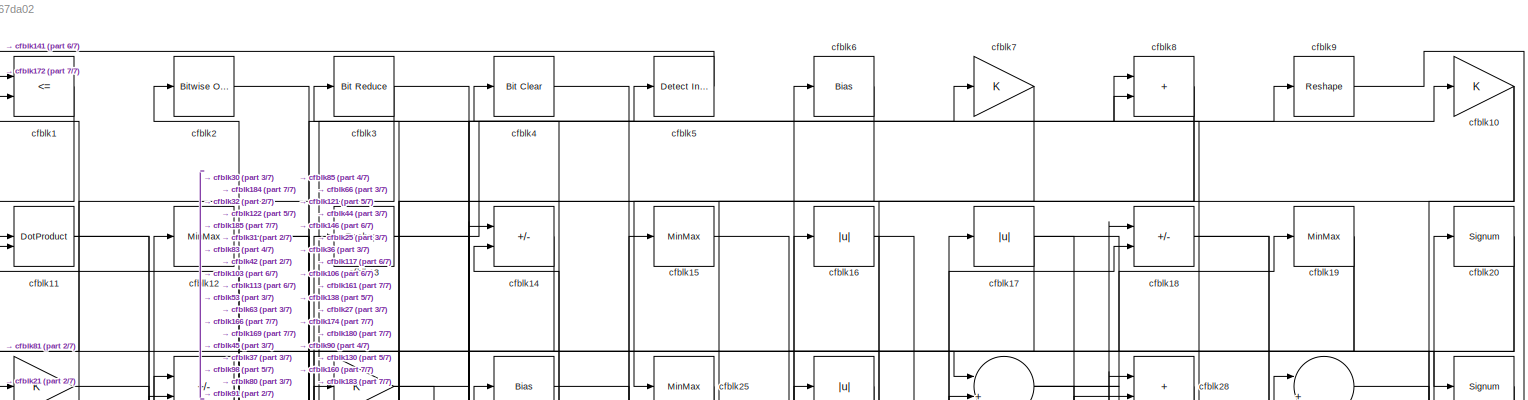
[diagram: root canvas - part 1/7, full width, top band]
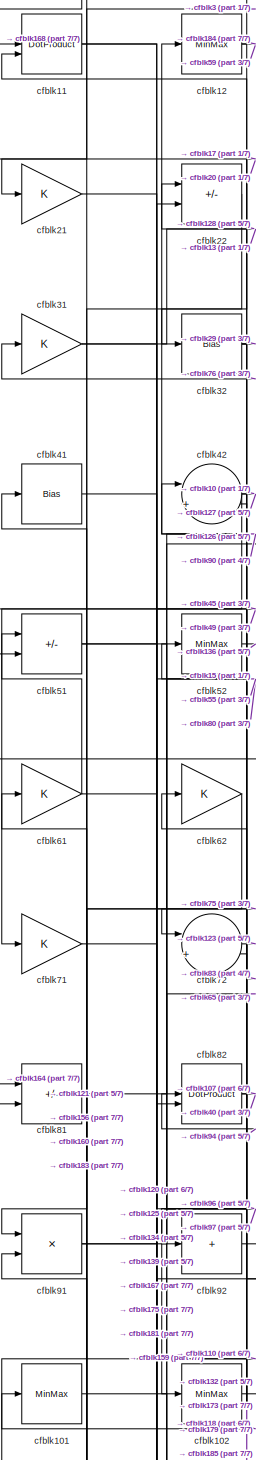
[diagram: root canvas - part 2/7, top left region]
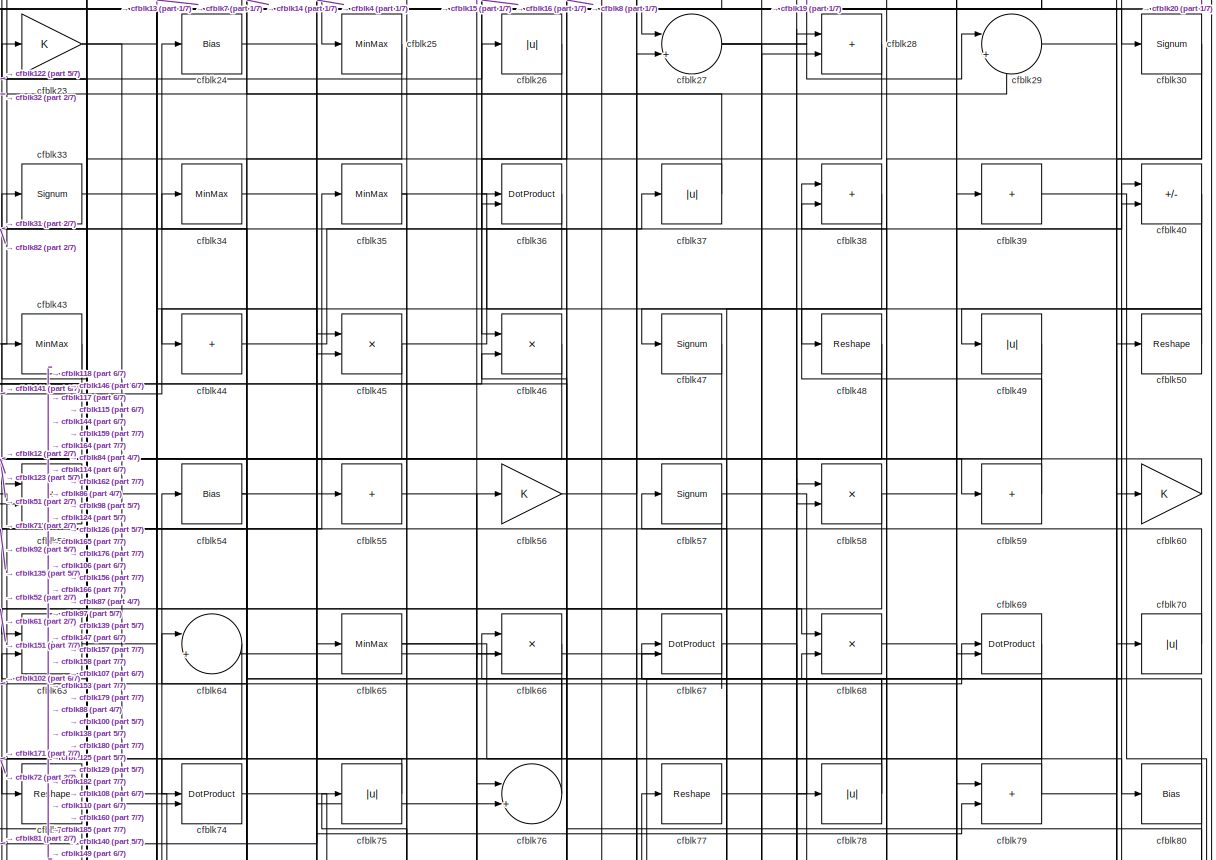
[diagram: root canvas - part 3/7, full width, top band]
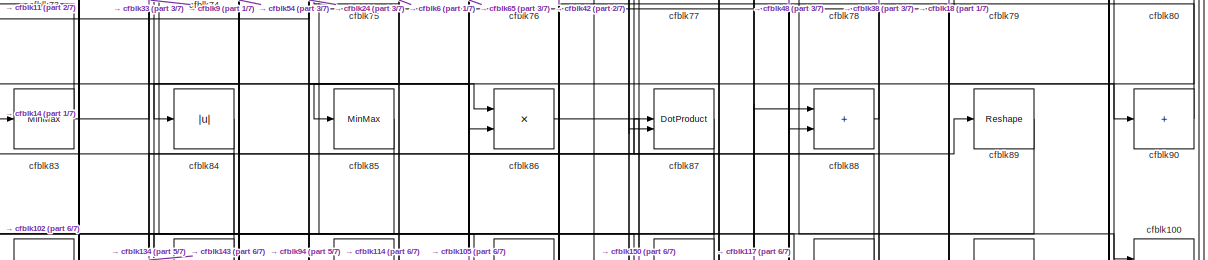
[diagram: root canvas - part 4/7, full width, middle band]
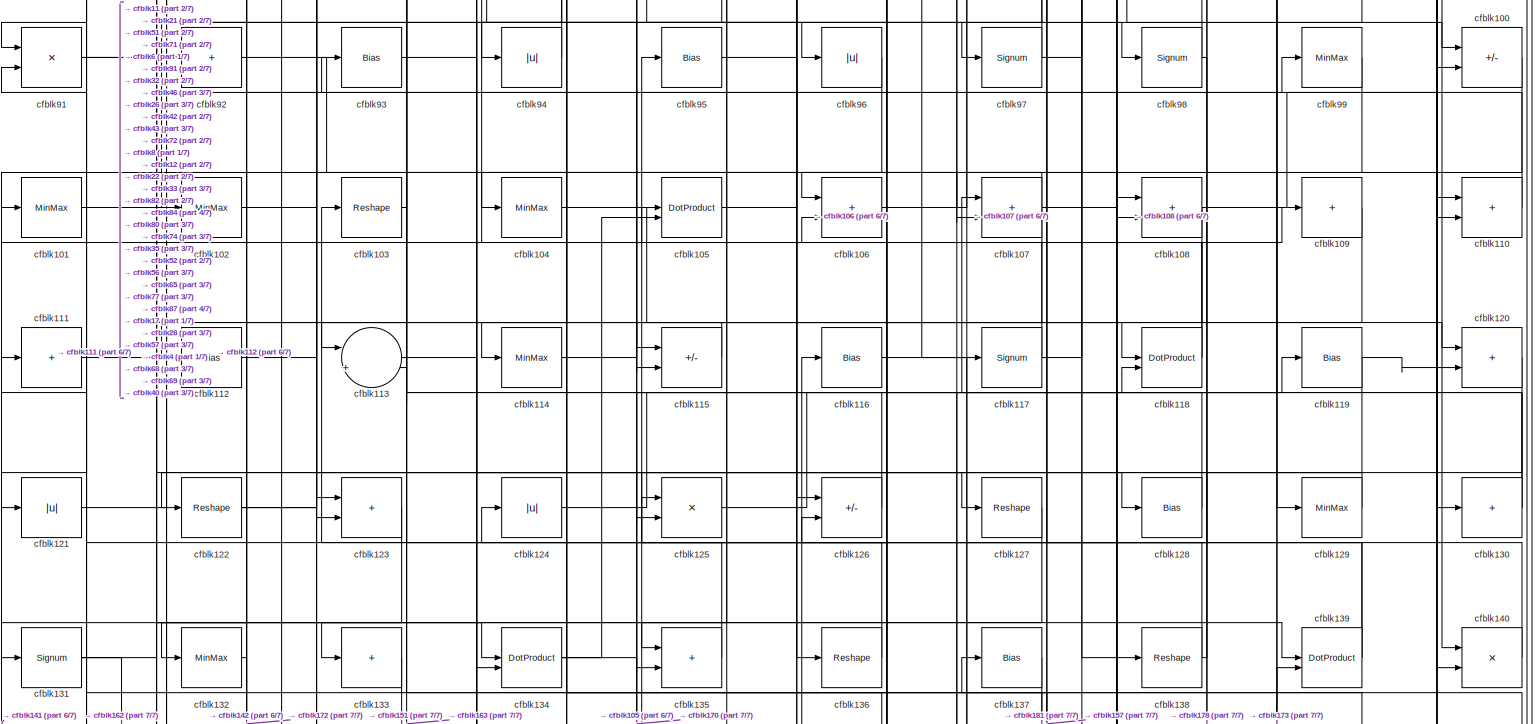
[diagram: root canvas - part 5/7, full width, middle band]
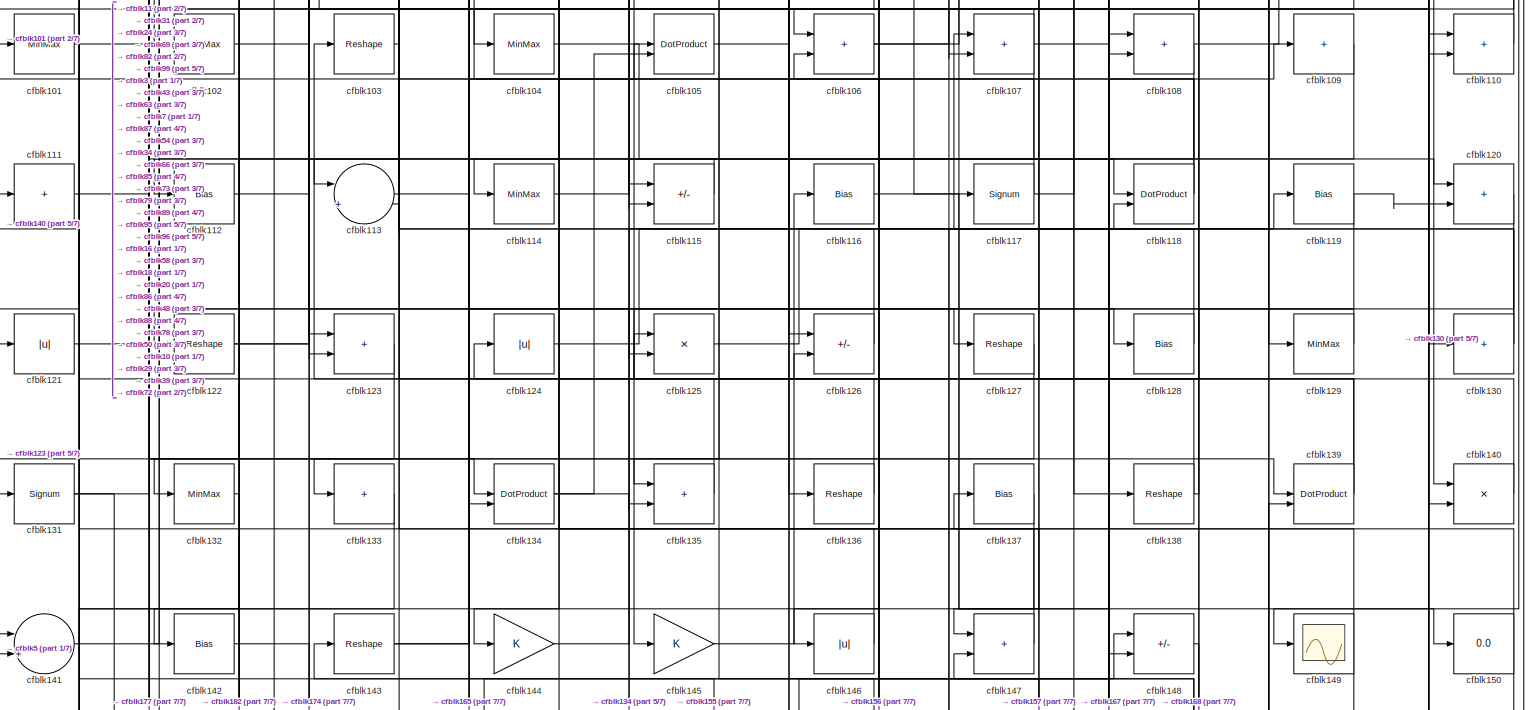
[diagram: root canvas - part 6/7, full width, middle band]
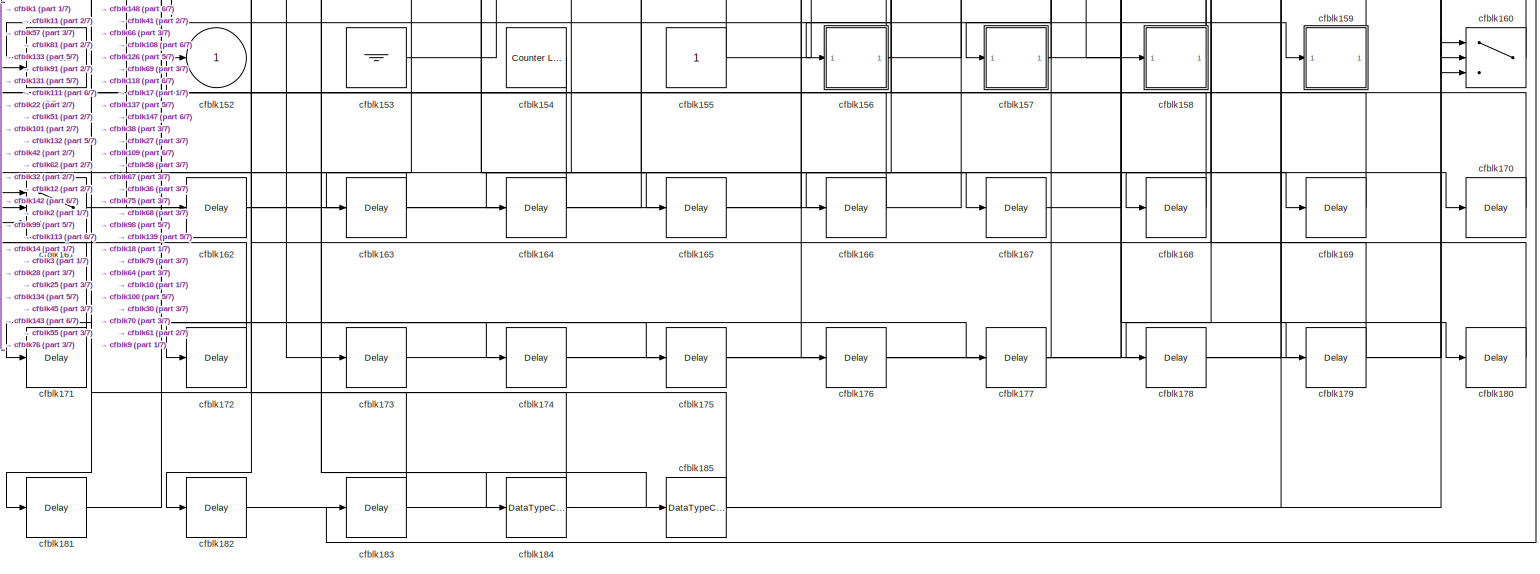
[diagram: root canvas - part 7/7, full width, bottom band]
MODEL slx_f5127b67da02
KIND model
CONFIG AbsTol = auto
CONFIG EnableMultiTasking = off
CONFIG FixedStep = auto
CONFIG MaxStep = auto
CONFIG MinStep = auto
CONFIG RelTol = 1e-3
CONFIG SampleTimeConstraint = Unconstrained
CONFIG SolverName = VariableStepAuto
CONFIG StartTime = 0.0
CONFIG StopTime = 10.0
BLOCK [RelationalOperator] cfblk1
  InputSameDT = off
  Operator = <=
  OutDataTypeStr = boolean
BLOCK [Gain] cfblk10
BLOCK [Sum] cfblk100
  IconShape = rectangular
  Inputs = +-
BLOCK [MinMax] cfblk101
BLOCK [MinMax] cfblk102
BLOCK [Reshape] cfblk103
BLOCK [MinMax] cfblk104
BLOCK [DotProduct] cfblk105
  OutDataTypeStr = Inherit: Inherit via internal rule
BLOCK [Sum] cfblk106
  IconShape = rectangular
BLOCK [Sum] cfblk107
  IconShape = rectangular
BLOCK [Sum] cfblk108
  IconShape = rectangular
BLOCK [Sum] cfblk109
  IconShape = rectangular
  Inputs = +
BLOCK [DotProduct] cfblk11
  OutDataTypeStr = Inherit: Inherit via internal rule
BLOCK [Sum] cfblk110
  IconShape = rectangular
BLOCK [Sum] cfblk111
  IconShape = rectangular
  Inputs = +
BLOCK [Bias] cfblk112
  Bias = 0.0
  SaturateOnIntegerOverflow = off
BLOCK [Sum] cfblk113
  Inputs = |++
BLOCK [MinMax] cfblk114
BLOCK [Sum] cfblk115
  IconShape = rectangular
  Inputs = +-
BLOCK [Bias] cfblk116
  Bias = 0.0
  SaturateOnIntegerOverflow = off
BLOCK [Signum] cfblk117
BLOCK [DotProduct] cfblk118
  OutDataTypeStr = Inherit: Inherit via internal rule
BLOCK [Bias] cfblk119
  Bias = 0.0
  SaturateOnIntegerOverflow = off
BLOCK [MinMax] cfblk12
BLOCK [Sum] cfblk120
  IconShape = rectangular
BLOCK [Abs] cfblk121
  SaturateOnIntegerOverflow = off
BLOCK [Reshape] cfblk122
BLOCK [Sum] cfblk123
  IconShape = rectangular
BLOCK [Abs] cfblk124
  SaturateOnIntegerOverflow = off
BLOCK [Product] cfblk125
  Inputs = */
  RndMeth = Zero
  SaturateOnIntegerOverflow = on
BLOCK [Sum] cfblk126
  IconShape = rectangular
  Inputs = +-
BLOCK [Reshape] cfblk127
BLOCK [Bias] cfblk128
  Bias = 0.0
  SaturateOnIntegerOverflow = off
BLOCK [MinMax] cfblk129
BLOCK [Reshape] cfblk13
BLOCK [Sum] cfblk130
  IconShape = rectangular
  Inputs = +
BLOCK [Signum] cfblk131
BLOCK [MinMax] cfblk132
BLOCK [Sum] cfblk133
  IconShape = rectangular
  Inputs = +
BLOCK [DotProduct] cfblk134
  OutDataTypeStr = Inherit: Inherit via internal rule
BLOCK [Sum] cfblk135
  IconShape = rectangular
BLOCK [Reshape] cfblk136
BLOCK [Bias] cfblk137
  Bias = 0.0
  SaturateOnIntegerOverflow = off
BLOCK [Reshape] cfblk138
BLOCK [DotProduct] cfblk139
  OutDataTypeStr = Inherit: Inherit via internal rule
BLOCK [Sum] cfblk14
  IconShape = rectangular
  Inputs = +-
BLOCK [Product] cfblk140
  Inputs = */
  RndMeth = Zero
  SaturateOnIntegerOverflow = on
BLOCK [Sum] cfblk141
  Inputs = |++
BLOCK [Bias] cfblk142
  Bias = 0.0
  SaturateOnIntegerOverflow = off
BLOCK [Reshape] cfblk143
BLOCK [Gain] cfblk144
BLOCK [Gain] cfblk145
BLOCK [Abs] cfblk146
  SaturateOnIntegerOverflow = off
BLOCK [Sum] cfblk147
  IconShape = rectangular
BLOCK [Sum] cfblk148
  IconShape = rectangular
  Inputs = +-
BLOCK [Scope] cfblk149
  Floating = off
  NumInputPorts = 1
  ScopeSpecificationString = Simulink.scopes.TimeScopeBlockCfg('CurrentConfiguration', extmgr.ConfigurationSet(extmgr.Configuration('Core','General UI',true),extmgr.Configuration('Core','Source UI',true),extmgr.Configuration('Sources','WiredSimulink',true,'DataLoggingVariableName','ScopeData2','DataLoggingSaveFormat','Array','DataLoggingLimitDataPoints',true,'DataLoggingDecimation','1'),extmgr.Configuration('Visuals','Time Do...<+868ch>
BLOCK [MinMax] cfblk15
BLOCK [Display] cfblk150
  Decimation = 1
BLOCK [Record] cfblk151
  CompatibilityTag = XY
  FileSettingsInternal = {"entries":[{"content":{"excelSettings":{"content":{},"type":"Streamout.ExcelSettings"}},"type":"Streamout.FileSettingStorage","uuid":""}],"packageUris":["http:\/\/schema.mathworks.com\/mf0\/streamout_blocks\/R2020a"],"version":"1.0"}
  Layout = [1 1]
  SignalsInternal = {"entries":[{"content":{"signals":[{"content":{"blockPath":[],"dimensions":[1],"domain":"","lineColor":"#a2142f","plots":[1],"port":1,"signalID":1220,"signalName":"XY Graph:1"},"type":"RecordBlkView.Signal","uuid":""},{"content":{"blockPath":[],"dimensions":[1],"domain":"","lineColor":"#139fff","plots":[1],"port":2,"signalID":1223,"signalName":"XY Graph:2"},"type":"RecordBlkView.Signal","uuid":""}...<+146ch>
  VisualizationBindings = {"xyplotplugin":{"info":[{"series":[{"bindingParametersList":[{"parameter":"X-Axis","signalID":1220,"signalName":"XY Graph:1"},{"parameter":"Y-Axis","signalID":1223,"signalName":"XY Graph:2"}],"seriesID":24875}],"subplotID":1}]}}
  st = -1
BLOCK [Outport] cfblk152
  VectorParamsAs1DForOutWhenUnconnected = off
BLOCK [Ground] cfblk153
BLOCK [Reference] cfblk154  REF=hdlsllib/Sources/Counter
Limited
  SourceBlock = hdlsllib/Sources/Counter\nLimited
  SourceType = Counter Limited
BLOCK [Constant] cfblk155
  SampleTime = -1
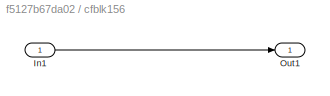
BLOCK [SubSystem] cfblk156
  LibrarySourceBlock = hdlsllib/Ports &\nSubsystems/Subsystem
BLOCK [Inport] cfblk156/In1
BLOCK [Outport] cfblk156/Out1
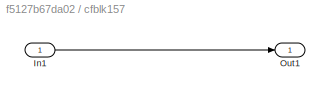
BLOCK [SubSystem] cfblk157
  LibrarySourceBlock = hdlsllib/Ports &\nSubsystems/Subsystem
BLOCK [Inport] cfblk157/In1
BLOCK [Outport] cfblk157/Out1
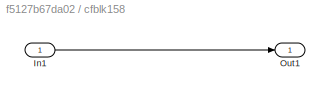
BLOCK [SubSystem] cfblk158
  LibrarySourceBlock = hdlsllib/Ports &\nSubsystems/Subsystem
BLOCK [Inport] cfblk158/In1
BLOCK [Outport] cfblk158/Out1
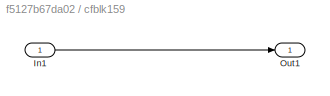
BLOCK [SubSystem] cfblk159
  LibrarySourceBlock = hdlsllib/Ports &\nSubsystems/Subsystem
BLOCK [Inport] cfblk159/In1
BLOCK [Outport] cfblk159/Out1
BLOCK [Abs] cfblk16
  SaturateOnIntegerOverflow = off
BLOCK [Switch] cfblk160
  InputSameDT = off
  SaturateOnIntegerOverflow = off
BLOCK [Switch] cfblk161
  InputSameDT = off
  SaturateOnIntegerOverflow = off
BLOCK [Delay] cfblk162
  InputPortMap = u0
  SampleTime = 1
BLOCK [Delay] cfblk163
  InputPortMap = u0
  SampleTime = 1
BLOCK [Delay] cfblk164
  InputPortMap = u0
  SampleTime = 1
BLOCK [Delay] cfblk165
  InputPortMap = u0
  SampleTime = 1
BLOCK [Delay] cfblk166
  InputPortMap = u0
  SampleTime = 1
BLOCK [Delay] cfblk167
  InputPortMap = u0
  SampleTime = 1
BLOCK [Delay] cfblk168
  InputPortMap = u0
  SampleTime = 1
BLOCK [Delay] cfblk169
  InputPortMap = u0
  SampleTime = 1
BLOCK [Abs] cfblk17
  SaturateOnIntegerOverflow = off
BLOCK [Delay] cfblk170
  InputPortMap = u0
  SampleTime = 1
BLOCK [Delay] cfblk171
  InputPortMap = u0
  SampleTime = 1
BLOCK [Delay] cfblk172
  InputPortMap = u0
  SampleTime = 1
BLOCK [Delay] cfblk173
  InputPortMap = u0
  SampleTime = 1
BLOCK [Delay] cfblk174
  InputPortMap = u0
  SampleTime = 1
BLOCK [Delay] cfblk175
  InputPortMap = u0
  SampleTime = 1
BLOCK [Delay] cfblk176
  InputPortMap = u0
  SampleTime = 1
BLOCK [Delay] cfblk177
  InputPortMap = u0
  SampleTime = 1
BLOCK [Delay] cfblk178
  InputPortMap = u0
  SampleTime = 1
BLOCK [Delay] cfblk179
  InputPortMap = u0
  SampleTime = 1
BLOCK [Sum] cfblk18
  IconShape = rectangular
  Inputs = +-
BLOCK [Delay] cfblk180
  InputPortMap = u0
  SampleTime = 1
BLOCK [Delay] cfblk181
  InputPortMap = u0
  SampleTime = 1
BLOCK [Delay] cfblk182
  InputPortMap = u0
  SampleTime = 1
BLOCK [Delay] cfblk183
  InputPortMap = u0
  SampleTime = 1
BLOCK [DataTypeConversion] cfblk184
  OutDataTypeStr = boolean
  RndMeth = Floor
  SaturateOnIntegerOverflow = off
BLOCK [DataTypeConversion] cfblk185
  RndMeth = Floor
  SaturateOnIntegerOverflow = off
BLOCK [MinMax] cfblk19
BLOCK [Reference] cfblk2  REF=simulink/Logic and Bit
Operations/Bitwise
Operator
  LibrarySourceBlock = hdlsllib/Logic and Bit\nOperations/Bitwise\nOperator
  SourceBlock = simulink/Logic and Bit\nOperations/Bitwise\nOperator
  SourceType = Bitwise Operator
BLOCK [Signum] cfblk20
BLOCK [Gain] cfblk21
BLOCK [Sum] cfblk22
  IconShape = rectangular
  Inputs = +-
BLOCK [Gain] cfblk23
BLOCK [Bias] cfblk24
  Bias = 0.0
  SaturateOnIntegerOverflow = off
BLOCK [MinMax] cfblk25
BLOCK [Abs] cfblk26
  SaturateOnIntegerOverflow = off
BLOCK [Sum] cfblk27
  Inputs = |++
BLOCK [Sum] cfblk28
  IconShape = rectangular
BLOCK [Sum] cfblk29
  Inputs = |++
BLOCK [Reference] cfblk3  REF=hdlsllib/Logic and Bit
Operations/Bit Reduce
  SourceBlock = hdlsllib/Logic and Bit\nOperations/Bit Reduce
  SourceType = Bit Reduce
BLOCK [Signum] cfblk30
BLOCK [Gain] cfblk31
BLOCK [Bias] cfblk32
  Bias = 0.0
  SaturateOnIntegerOverflow = off
BLOCK [Signum] cfblk33
BLOCK [MinMax] cfblk34
BLOCK [MinMax] cfblk35
BLOCK [DotProduct] cfblk36
  OutDataTypeStr = Inherit: Inherit via internal rule
BLOCK [Abs] cfblk37
  SaturateOnIntegerOverflow = off
BLOCK [Sum] cfblk38
  IconShape = rectangular
BLOCK [Sum] cfblk39
  IconShape = rectangular
  Inputs = +
BLOCK [Reference] cfblk4  REF=simulink/Logic and Bit
Operations/Bit Clear
  LibrarySourceBlock = hdlsllib/Logic and Bit\nOperations/Bit Clear
  SourceBlock = simulink/Logic and Bit\nOperations/Bit Clear
  SourceType = Bit Clear
BLOCK [Sum] cfblk40
  IconShape = rectangular
  Inputs = +-
BLOCK [Bias] cfblk41
  Bias = 0.0
  SaturateOnIntegerOverflow = off
BLOCK [Sum] cfblk42
  Inputs = |++
BLOCK [MinMax] cfblk43
BLOCK [Sum] cfblk44
  IconShape = rectangular
  Inputs = +
BLOCK [Product] cfblk45
  Inputs = */
  RndMeth = Zero
  SaturateOnIntegerOverflow = on
BLOCK [Product] cfblk46
  Inputs = */
  RndMeth = Zero
  SaturateOnIntegerOverflow = on
BLOCK [Signum] cfblk47
BLOCK [Reshape] cfblk48
BLOCK [Abs] cfblk49
  SaturateOnIntegerOverflow = off
BLOCK [Reference] cfblk5  REF=simulink/Logic and Bit
Operations/Detect
Increase
  LibrarySourceBlock = hdlsllib/Logic and Bit\nOperations/Detect\nIncrease
  SourceBlock = simulink/Logic and Bit\nOperations/Detect\nIncrease
  SourceType = Detect Increase
BLOCK [Reshape] cfblk50
BLOCK [Sum] cfblk51
  IconShape = rectangular
  Inputs = +-
BLOCK [MinMax] cfblk52
BLOCK [Sum] cfblk53
  IconShape = rectangular
BLOCK [Bias] cfblk54
  Bias = 0.0
  SaturateOnIntegerOverflow = off
BLOCK [Sum] cfblk55
  IconShape = rectangular
  Inputs = +
BLOCK [Gain] cfblk56
BLOCK [Signum] cfblk57
BLOCK [Product] cfblk58
  Inputs = */
  RndMeth = Zero
  SaturateOnIntegerOverflow = on
BLOCK [Sum] cfblk59
  IconShape = rectangular
  Inputs = +
BLOCK [Bias] cfblk6
  Bias = 0.0
  SaturateOnIntegerOverflow = off
BLOCK [Gain] cfblk60
BLOCK [Gain] cfblk61
BLOCK [Gain] cfblk62
BLOCK [Sum] cfblk63
  IconShape = rectangular
BLOCK [Sum] cfblk64
  Inputs = |++
BLOCK [MinMax] cfblk65
BLOCK [Product] cfblk66
  Inputs = */
  RndMeth = Zero
  SaturateOnIntegerOverflow = on
BLOCK [DotProduct] cfblk67
  OutDataTypeStr = Inherit: Inherit via internal rule
BLOCK [Product] cfblk68
  Inputs = */
  RndMeth = Zero
  SaturateOnIntegerOverflow = on
BLOCK [DotProduct] cfblk69
  OutDataTypeStr = Inherit: Inherit via internal rule
BLOCK [Gain] cfblk7
BLOCK [Abs] cfblk70
  SaturateOnIntegerOverflow = off
BLOCK [Gain] cfblk71
BLOCK [Sum] cfblk72
  Inputs = |++
BLOCK [Reshape] cfblk73
BLOCK [DotProduct] cfblk74
  OutDataTypeStr = Inherit: Inherit via internal rule
BLOCK [Abs] cfblk75
  SaturateOnIntegerOverflow = off
BLOCK [Sum] cfblk76
  Inputs = |++
BLOCK [Reshape] cfblk77
BLOCK [Abs] cfblk78
  SaturateOnIntegerOverflow = off
BLOCK [Sum] cfblk79
  IconShape = rectangular
BLOCK [Sum] cfblk8
  IconShape = rectangular
BLOCK [Bias] cfblk80
  Bias = 0.0
  SaturateOnIntegerOverflow = off
BLOCK [Sum] cfblk81
  IconShape = rectangular
  Inputs = +-
BLOCK [DotProduct] cfblk82
  OutDataTypeStr = Inherit: Inherit via internal rule
BLOCK [MinMax] cfblk83
BLOCK [Abs] cfblk84
  SaturateOnIntegerOverflow = off
BLOCK [MinMax] cfblk85
BLOCK [Product] cfblk86
  Inputs = */
  RndMeth = Zero
  SaturateOnIntegerOverflow = on
BLOCK [DotProduct] cfblk87
  OutDataTypeStr = Inherit: Inherit via internal rule
BLOCK [Sum] cfblk88
  IconShape = rectangular
BLOCK [Reshape] cfblk89
BLOCK [Reshape] cfblk9
BLOCK [Sum] cfblk90
  IconShape = rectangular
  Inputs = +
BLOCK [Product] cfblk91
  Inputs = */
  RndMeth = Zero
  SaturateOnIntegerOverflow = on
BLOCK [Sum] cfblk92
  IconShape = rectangular
  Inputs = +
BLOCK [Bias] cfblk93
  Bias = 0.0
  SaturateOnIntegerOverflow = off
BLOCK [Abs] cfblk94
  SaturateOnIntegerOverflow = off
BLOCK [Bias] cfblk95
  Bias = 0.0
  SaturateOnIntegerOverflow = off
BLOCK [Abs] cfblk96
  SaturateOnIntegerOverflow = off
BLOCK [Signum] cfblk97
BLOCK [Signum] cfblk98
BLOCK [MinMax] cfblk99
LINE cfblk100:1 -> cfblk131:1
LINE cfblk101:1 -> cfblk159:1
LINE cfblk102:1 -> cfblk69:1
LINE cfblk103:1 -> cfblk3:1
LINE cfblk104:1 -> cfblk118:1
LINE cfblk105:1 -> cfblk89:1
NET cfblk106:1 -> cfblk18:2, cfblk20:1
NET cfblk107:1 -> cfblk104:1, cfblk115:2, cfblk78:1
NET cfblk108:1 -> cfblk156:1, cfblk50:1
LINE cfblk109:1 -> cfblk182:1
NET cfblk10:1 -> cfblk113:1, cfblk160:3
LINE cfblk110:1 -> cfblk72:2
LINE cfblk111:1 -> cfblk177:1
LINE cfblk112:1 -> cfblk99:1
LINE cfblk113:1 -> cfblk165:1
LINE cfblk114:1 -> cfblk79:2
LINE cfblk115:1 -> cfblk112:1
LINE cfblk116:1 -> cfblk148:2
NET cfblk117:1 -> cfblk54:1, cfblk88:1
NET cfblk118:1 -> cfblk101:1, cfblk43:1
NET cfblk119:1 -> cfblk120:2, cfblk145:1
NET cfblk11:1 -> cfblk120:1, cfblk139:1
LINE cfblk120:1 -> cfblk103:1
LINE cfblk121:1 -> cfblk6:1
NET cfblk122:1 -> cfblk26:1, cfblk8:2
LINE cfblk123:1 -> cfblk141:1
LINE cfblk124:1 -> cfblk56:1
LINE cfblk125:1 -> cfblk69:2
LINE cfblk126:1 -> cfblk12:1
LINE cfblk127:1 -> cfblk133:1
LINE cfblk128:1 -> cfblk22:1
LINE cfblk129:1 -> cfblk122:1
NET cfblk12:1 -> cfblk184:1, cfblk59:1
NET cfblk130:1 -> cfblk106:2, cfblk107:1
NET cfblk131:1 -> cfblk162:1, cfblk93:1
LINE cfblk132:1 -> cfblk172:1
LINE cfblk133:1 -> cfblk151:1
NET cfblk134:1 -> cfblk105:2, cfblk170:1
LINE cfblk135:1 -> cfblk95:1
LINE cfblk136:1 -> cfblk125:1
LINE cfblk137:1 -> cfblk181:1
NET cfblk138:1 -> cfblk33:1, cfblk8:1
NET cfblk139:1 -> cfblk124:1, cfblk57:1
NET cfblk13:1 -> cfblk45:2, cfblk5:1
LINE cfblk140:1 -> cfblk111:1
LINE cfblk141:1 -> cfblk24:1
LINE cfblk142:1 -> cfblk174:1
NET cfblk143:1 -> cfblk105:1, cfblk87:1
LINE cfblk144:1 -> cfblk119:1
LINE cfblk145:1 -> cfblk116:1
LINE cfblk146:1 -> cfblk63:2
LINE cfblk147:1 -> cfblk34:1
LINE cfblk148:1 -> cfblk168:1
LINE cfblk14:1 -> cfblk83:1
LINE cfblk153:1 -> cfblk28:1
LINE cfblk154:1 -> cfblk152:1
NET cfblk155:1 -> cfblk143:1, cfblk148:1
LINE cfblk156/In1:1 -> cfblk156/Out1:1
NET cfblk156:1 -> cfblk118:2, cfblk41:1, cfblk66:1
LINE cfblk157/In1:1 -> cfblk157/Out1:1
NET cfblk157:1 -> cfblk109:1, cfblk137:1
LINE cfblk158/In1:1 -> cfblk158/Out1:1
NET cfblk158:1 -> cfblk36:2, cfblk75:1
LINE cfblk159/In1:1 -> cfblk159/Out1:1
LINE cfblk159:1 -> cfblk64:1
LINE cfblk15:1 -> cfblk30:1
LINE cfblk160:1 -> cfblk61:1
LINE cfblk161:1 -> cfblk17:1
LINE cfblk162:1 -> cfblk45:1
LINE cfblk163:1 -> cfblk161:2
LINE cfblk164:1 -> cfblk81:1
LINE cfblk165:1 -> cfblk76:1
LINE cfblk166:1 -> cfblk14:1
LINE cfblk167:1 -> cfblk108:1
LINE cfblk168:1 -> cfblk11:1
LINE cfblk169:1 -> cfblk1:2
NET cfblk16:1 -> cfblk117:1, cfblk146:1
LINE cfblk170:1 -> cfblk126:2
LINE cfblk171:1 -> cfblk161:1
LINE cfblk172:1 -> cfblk1:1
LINE cfblk173:1 -> cfblk139:2
LINE cfblk174:1 -> cfblk18:1
LINE cfblk175:1 -> cfblk160:1
LINE cfblk176:1 -> cfblk58:1
LINE cfblk177:1 -> cfblk147:2
LINE cfblk178:1 -> cfblk100:2
LINE cfblk179:1 -> cfblk42:2
NET cfblk17:1 -> cfblk130:1, cfblk138:1, cfblk81:2
LINE cfblk180:1 -> cfblk68:2
LINE cfblk181:1 -> cfblk22:2
LINE cfblk182:1 -> cfblk79:1
LINE cfblk183:1 -> cfblk91:2
LINE cfblk184:1 -> cfblk2:1
NET cfblk185:1 -> cfblk62:1, cfblk70:1
NET cfblk18:1 -> cfblk180:1, cfblk90:1
NET cfblk19:1 -> cfblk53:2, cfblk63:1
LINE cfblk1:1 -> cfblk161:3
NET cfblk20:1 -> cfblk32:1, cfblk66:2
LINE cfblk21:1 -> cfblk134:1
LINE cfblk22:1 -> cfblk121:1
NET cfblk23:1 -> cfblk27:1, cfblk74:2
LINE cfblk24:1 -> cfblk86:1
LINE cfblk25:1 -> cfblk164:1
LINE cfblk26:1 -> cfblk73:1
NET cfblk27:1 -> cfblk158:1, cfblk19:1, cfblk29:1
LINE cfblk28:1 -> cfblk46:1
LINE cfblk29:1 -> cfblk110:1
LINE cfblk2:1 -> cfblk185:1
NET cfblk30:1 -> cfblk160:2, cfblk48:1
NET cfblk31:1 -> cfblk110:2, cfblk13:1
NET cfblk32:1 -> cfblk132:1, cfblk173:1, cfblk29:2
LINE cfblk33:1 -> cfblk86:2
LINE cfblk34:1 -> cfblk76:2
NET cfblk35:1 -> cfblk135:1, cfblk58:2
LINE cfblk36:1 -> cfblk44:1
LINE cfblk37:1 -> cfblk14:2
LINE cfblk38:1 -> cfblk157:1
LINE cfblk39:1 -> cfblk149:1
NET cfblk3:1 -> cfblk169:1, cfblk21:1
NET cfblk40:1 -> cfblk140:1, cfblk47:1
LINE cfblk41:1 -> cfblk167:1
NET cfblk42:1 -> cfblk10:1, cfblk127:1, cfblk82:2
LINE cfblk43:1 -> cfblk123:2
LINE cfblk44:1 -> cfblk16:1
NET cfblk45:1 -> cfblk37:1, cfblk51:2
LINE cfblk46:1 -> cfblk92:1
LINE cfblk47:1 -> cfblk74:1
NET cfblk48:1 -> cfblk147:1, cfblk88:2
LINE cfblk49:1 -> cfblk71:1
LINE cfblk4:1 -> cfblk80:1
LINE cfblk50:1 -> cfblk49:1
NET cfblk51:1 -> cfblk175:1, cfblk96:1
LINE cfblk52:1 -> cfblk136:1
LINE cfblk53:1 -> cfblk68:1
NET cfblk54:1 -> cfblk35:1, cfblk84:1
LINE cfblk55:1 -> cfblk176:1
LINE cfblk56:1 -> cfblk27:2
NET cfblk57:1 -> cfblk100:1, cfblk151:2
NET cfblk58:1 -> cfblk106:1, cfblk40:2
LINE cfblk59:1 -> cfblk38:1
LINE cfblk5:1 -> cfblk141:2
LINE cfblk60:1 -> cfblk53:1
NET cfblk61:1 -> cfblk51:1, cfblk55:1
LINE cfblk62:1 -> cfblk91:1
LINE cfblk63:1 -> cfblk7:1
LINE cfblk64:1 -> cfblk171:1
NET cfblk65:1 -> cfblk126:1, cfblk87:2
LINE cfblk66:1 -> cfblk144:1
NET cfblk67:1 -> cfblk179:1, cfblk64:2
LINE cfblk68:1 -> cfblk129:1
LINE cfblk69:1 -> cfblk166:1
LINE cfblk6:1 -> cfblk85:1
LINE cfblk70:1 -> cfblk23:1
LINE cfblk71:1 -> cfblk125:2
LINE cfblk72:1 -> cfblk123:1
LINE cfblk73:1 -> cfblk115:1
LINE cfblk74:1 -> cfblk98:1
LINE cfblk75:1 -> cfblk72:1
LINE cfblk76:1 -> cfblk31:1
LINE cfblk77:1 -> cfblk39:1
NET cfblk78:1 -> cfblk67:1, cfblk67:2
NET cfblk79:1 -> cfblk46:2, cfblk60:1
LINE cfblk7:1 -> cfblk113:2
NET cfblk80:1 -> cfblk135:2, cfblk52:1
LINE cfblk81:1 -> cfblk65:1
NET cfblk82:1 -> cfblk107:2, cfblk40:1
NET cfblk83:1 -> cfblk11:2, cfblk9:1
LINE cfblk84:1 -> cfblk134:2
LINE cfblk85:1 -> cfblk114:1
LINE cfblk86:1 -> cfblk150:1
LINE cfblk87:1 -> cfblk94:1
LINE cfblk88:1 -> cfblk38:2
LINE cfblk89:1 -> cfblk102:1
NET cfblk8:1 -> cfblk25:1, cfblk36:1
LINE cfblk90:1 -> cfblk42:1
NET cfblk91:1 -> cfblk15:1, cfblk97:1
LINE cfblk92:1 -> cfblk140:2
LINE cfblk93:1 -> cfblk128:1
LINE cfblk94:1 -> cfblk82:1
LINE cfblk95:1 -> cfblk108:2
LINE cfblk96:1 -> cfblk142:1
NET cfblk97:1 -> cfblk28:2, cfblk77:1
NET cfblk98:1 -> cfblk178:1, cfblk4:1
LINE cfblk99:1 -> cfblk163:1
LINE cfblk9:1 -> cfblk183:1
note: NET lines group one-source signal fan-out (src -> all destinations, sorted); 1:1 wires keep LINE
